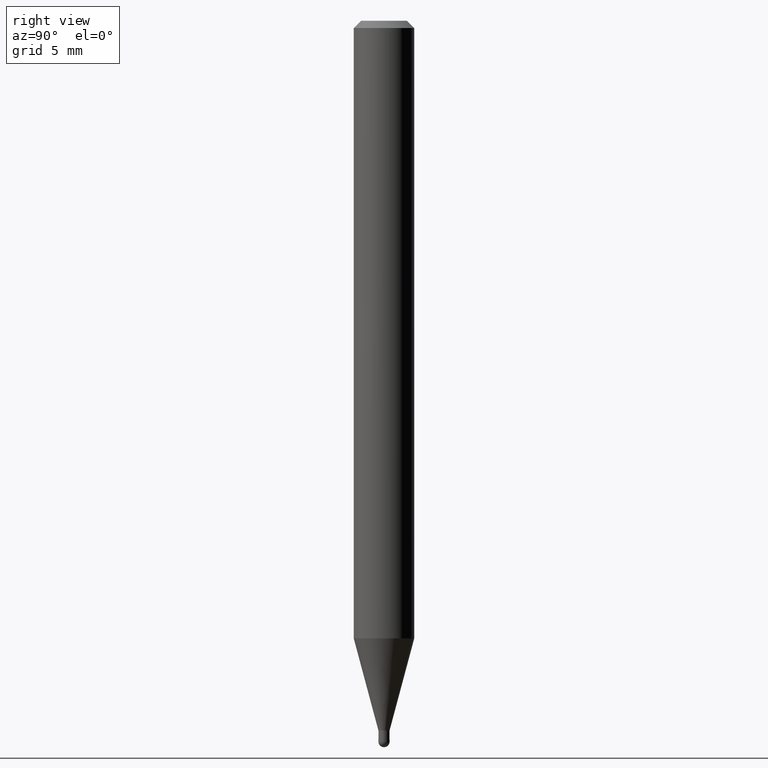
[diagram: clean part render]
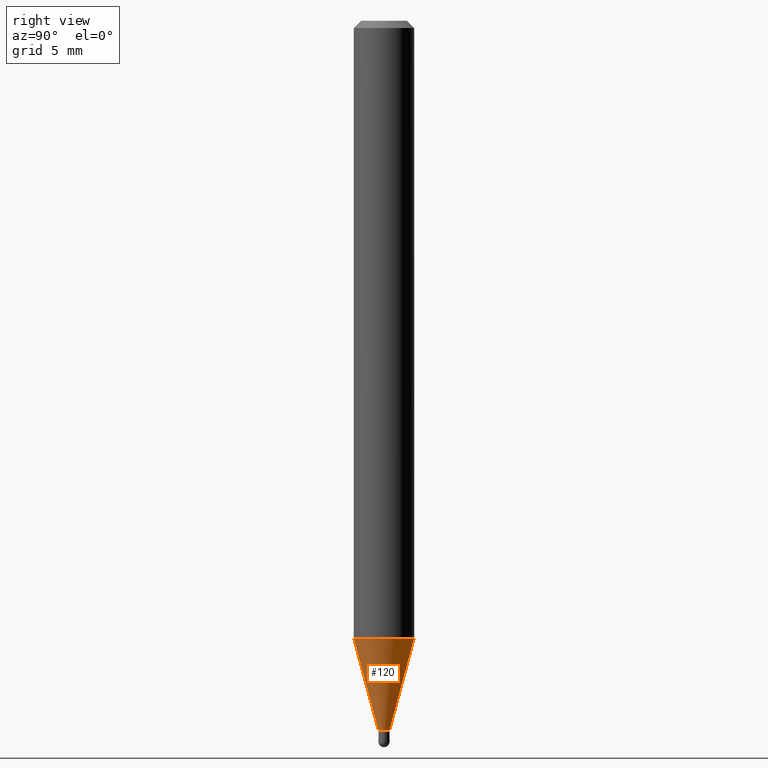
[diagram: same view with one face highlighted and labeled with its STEP entity id]
A machine part, right view. The second image highlights one B-rep face of the part: STEP entity #120.
In plain terms, the highlighted conical surface has half-angle 15 deg.
Its self-contained STEP definition (entity closure, byte-faithful):
#1 = AXIS2_PLACEMENT_3D ( 'NONE', #470, #182, #310 ) ;
#28 = VECTOR ( 'NONE', #364, 39.37007874015748854 ) ;
#37 = CIRCLE ( 'NONE', #133, 0.01150000000000019930 ) ;
#41 = LINE ( 'NONE', #127, #28 ) ;
#48 = CARTESIAN_POINT ( 'NONE',  ( -4.364351673553606080E-16, -0.06250000000000446865, -1.275165408813993873 ) ) ;
#49 = EDGE_CURVE ( 'NONE', #268, #455, #225, .T. ) ;
#61 = DIRECTION ( 'NONE',  ( -2.445458199686811068E-29, 3.491496527952432111E-15, 1.000000000000000000 ) ) ;
#86 = ORIENTED_EDGE ( 'NONE', *, *, #421, .T. ) ;
#91 = CARTESIAN_POINT ( 'NONE',  ( 3.583818991641021740E-29, -5.116788161714288228E-15, -1.465500000000000025 ) ) ;
#95 = ORIENTED_EDGE ( 'NONE', *, *, #49, .F. ) ;
#110 = DIRECTION ( 'NONE',  ( -6.982962677686265922E-15, -1.000000000000000000, 0.000000000000000000 ) ) ;
#120 = ADVANCED_FACE ( 'NONE', ( #433 ), #191, .T. ) ;
#127 = CARTESIAN_POINT ( 'NONE',  ( 8.171241461244875669E-17, 0.01149999999999508360, -1.465500000000000025 ) ) ;
#133 = AXIS2_PLACEMENT_3D ( 'NONE', #91, #61, #217 ) ;
#153 = EDGE_CURVE ( 'NONE', #413, #268, #281, .T. ) ;
#182 = DIRECTION ( 'NONE',  ( -2.445458199686811068E-29, 3.491496527952432111E-15, 1.000000000000000000 ) ) ;
#191 = CONICAL_SURFACE ( 'NONE', #483, 0.01150000000000019930, 0.2617993877991576235 ) ;
#217 = DIRECTION ( 'NONE',  ( -6.982962677686265922E-15, -1.000000000000000000, 0.000000000000000000 ) ) ;
#225 = CIRCLE ( 'NONE', #1, 0.06250000000000000000 ) ;
#250 = VERTEX_POINT ( 'NONE', #440 ) ;
#268 = VERTEX_POINT ( 'NONE', #48 ) ;
#281 = LINE ( 'NONE', #431, #357 ) ;
#310 = DIRECTION ( 'NONE',  ( -6.982962677686265922E-15, -1.000000000000000000, 4.370956789862821150E-15 ) ) ;
#325 = ORIENTED_EDGE ( 'NONE', *, *, #329, .T. ) ;
#329 = EDGE_CURVE ( 'NONE', #250, #455, #41, .T. ) ;
#338 = CARTESIAN_POINT ( 'NONE',  ( -8.030407079335760973E-17, -0.01150000000000531500, -1.465500000000000025 ) ) ;
#351 = CARTESIAN_POINT ( 'NONE',  ( 3.583818991641021740E-29, -5.116788161714288228E-15, -1.465500000000000025 ) ) ;
#357 = VECTOR ( 'NONE', #438, 39.37007874015748143 ) ;
#364 = DIRECTION ( 'NONE',  ( 1.839019923739650408E-15, 0.2588190451025320082, 0.9659258262890650926 ) ) ;
#379 = EDGE_LOOP ( 'NONE', ( #86, #325, #95, #495 ) ) ;
#413 = VERTEX_POINT ( 'NONE', #338 ) ;
#421 = EDGE_CURVE ( 'NONE', #413, #250, #37, .T. ) ;
#431 = CARTESIAN_POINT ( 'NONE',  ( -8.030407079335760973E-17, -0.01150000000000531500, -1.465500000000000025 ) ) ;
#433 = FACE_OUTER_BOUND ( 'NONE', #379, .T. ) ;
#438 = DIRECTION ( 'NONE',  ( -1.807323732225379838E-15, -0.2588190451025252914, 0.9659258262890670910 ) ) ;
#440 = CARTESIAN_POINT ( 'NONE',  ( 2.629008122312714205E-16, 0.01149999999999508360, -1.465500000000000025 ) ) ;
#455 = VERTEX_POINT ( 'NONE', #490 ) ;
#470 = CARTESIAN_POINT ( 'NONE',  ( 3.118363704941167233E-29, -4.452235597439104225E-15, -1.275165408813994095 ) ) ;
#483 = AXIS2_PLACEMENT_3D ( 'NONE', #351, #505, #110 ) ;
#490 = CARTESIAN_POINT ( 'NONE',  ( 4.440892098500936776E-16, 0.06249999999999554523, -1.275165408813994539 ) ) ;
#495 = ORIENTED_EDGE ( 'NONE', *, *, #153, .F. ) ;
#505 = DIRECTION ( 'NONE',  ( -2.445458199686811068E-29, 3.491496527952432111E-15, 1.000000000000000000 ) ) ;